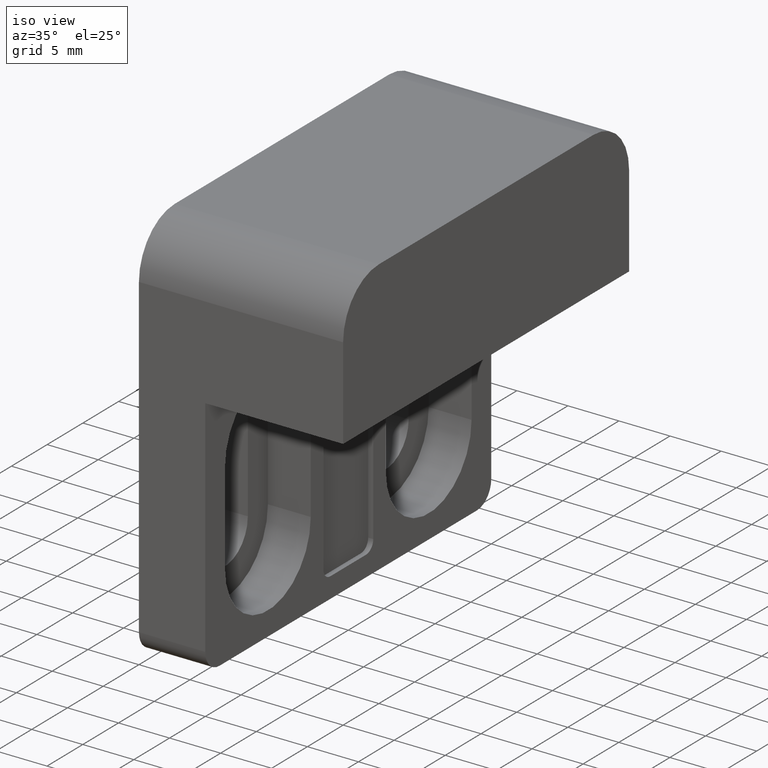
[diagram: clean part render]
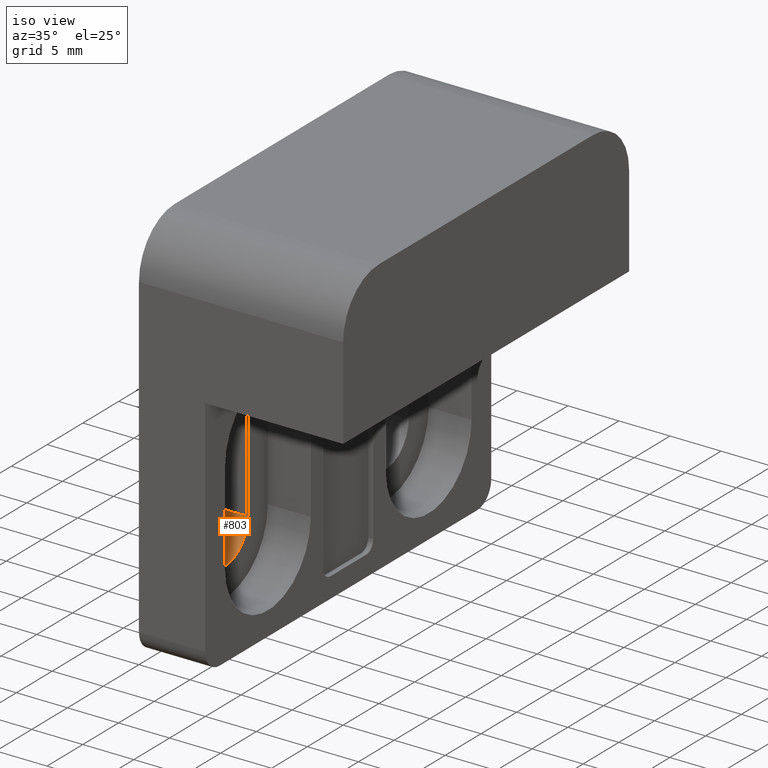
[diagram: same view with one face highlighted and labeled with its STEP entity id]
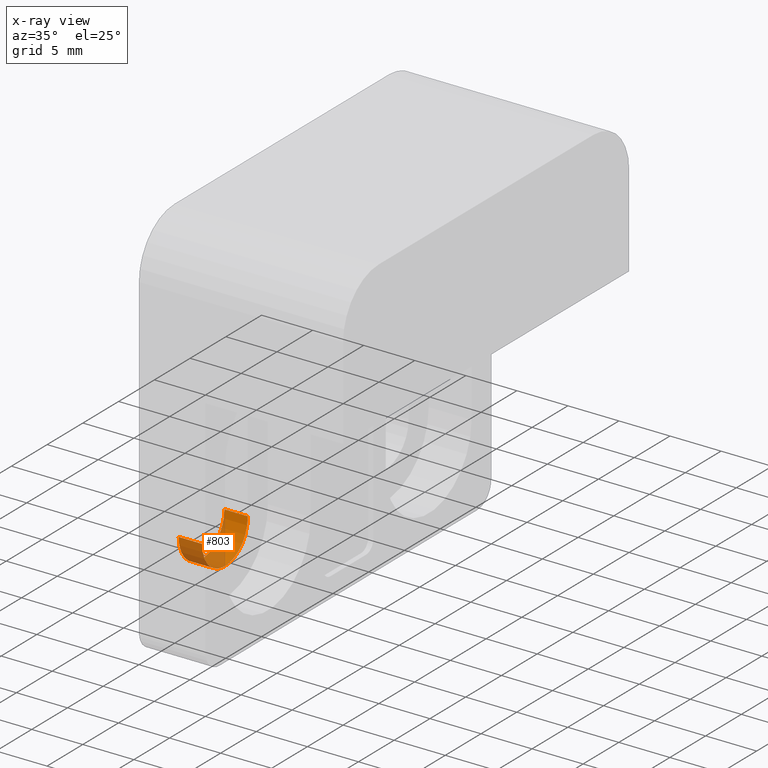
[diagram: x-ray of the same camera — body ghosted, the highlighted face saturated]
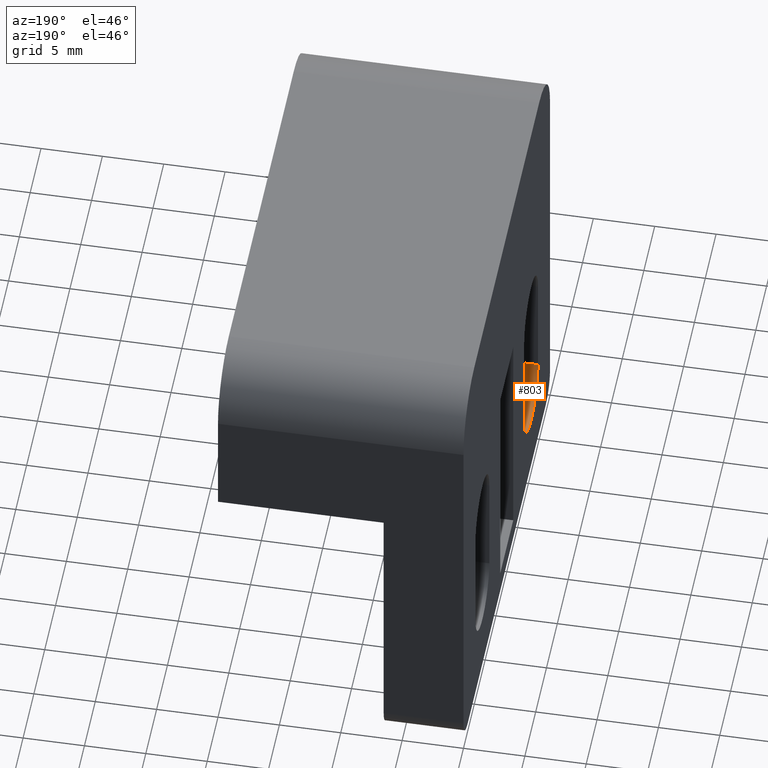
[diagram: same view with one face highlighted and labeled with its STEP entity id]
A machine part, iso view. The second image highlights one B-rep face of the part: STEP entity #803.
The next image is the same camera in x-ray: the body ghosted, the highlighted face saturated — about 53% of this face is hidden behind the body in this view.
A second angle (auxiliary view) of the same face is appended — the face is thin or edge-on in the first view.
In plain terms, the highlighted cylindrical surface (partial cylindrical patch) has radius 3.2 mm, axis along (-1, 0, 0).
Its self-contained STEP definition (entity closure, byte-faithful):
#42=CIRCLE('',#866,3.2);
#44=CIRCLE('',#871,3.2);
#64=CYLINDRICAL_SURFACE('',#870,3.2);
#97=FACE_OUTER_BOUND('',#143,.T.);
#143=EDGE_LOOP('',(#637,#638,#639,#640));
#219=LINE('',#1288,#301);
#220=LINE('',#1291,#302);
#301=VECTOR('',#1049,2.3);
#302=VECTOR('',#1052,2.3);
#376=VERTEX_POINT('',#1269);
#378=VERTEX_POINT('',#1273);
#382=VERTEX_POINT('',#1287);
#383=VERTEX_POINT('',#1289);
#474=EDGE_CURVE('',#376,#378,#42,.T.);
#480=EDGE_CURVE('',#378,#382,#219,.T.);
#481=EDGE_CURVE('',#383,#382,#44,.T.);
#482=EDGE_CURVE('',#376,#383,#220,.T.);
#637=ORIENTED_EDGE('',*,*,#474,.T.);
#638=ORIENTED_EDGE('',*,*,#480,.T.);
#639=ORIENTED_EDGE('',*,*,#481,.F.);
#640=ORIENTED_EDGE('',*,*,#482,.F.);
#803=ADVANCED_FACE('',(#97),#64,.F.);
#866=AXIS2_PLACEMENT_3D('',#1275,#1035,#1036);
#870=AXIS2_PLACEMENT_3D('',#1286,#1047,#1048);
#871=AXIS2_PLACEMENT_3D('',#1290,#1050,#1051);
#1035=DIRECTION('center_axis',(1.,-5.55111512312578E-17,-1.85037170770859E-16));
#1036=DIRECTION('ref_axis',(0.,1.,0.));
#1047=DIRECTION('center_axis',(-1.,0.,0.));
#1048=DIRECTION('ref_axis',(0.,1.,0.));
#1049=DIRECTION('',(-1.,0.,0.));
#1050=DIRECTION('center_axis',(1.,0.,-1.1686558153949E-16));
#1051=DIRECTION('ref_axis',(0.,1.,0.));
#1052=DIRECTION('',(-1.,0.,0.));
#1269=CARTESIAN_POINT('',(-17.7,-14.45,-29.7));
#1273=CARTESIAN_POINT('',(-17.7,-8.05,-29.7));
#1275=CARTESIAN_POINT('Origin',(-17.7,-11.25,-29.7));
#1286=CARTESIAN_POINT('Origin',(-13.5,-11.25,-29.7));
#1287=CARTESIAN_POINT('',(-20.,-8.05,-29.7));
#1288=CARTESIAN_POINT('',(-13.5,-8.05,-29.7));
#1289=CARTESIAN_POINT('',(-20.,-14.45,-29.7));
#1290=CARTESIAN_POINT('Origin',(-20.,-11.25,-29.7));
#1291=CARTESIAN_POINT('',(-13.5,-14.45,-29.7));